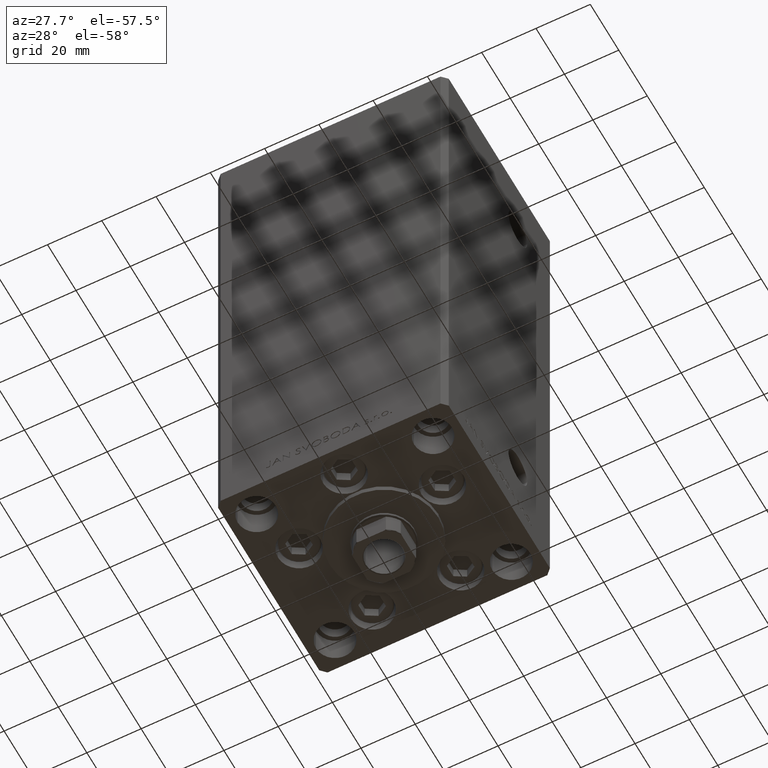
[diagram: clean part render]
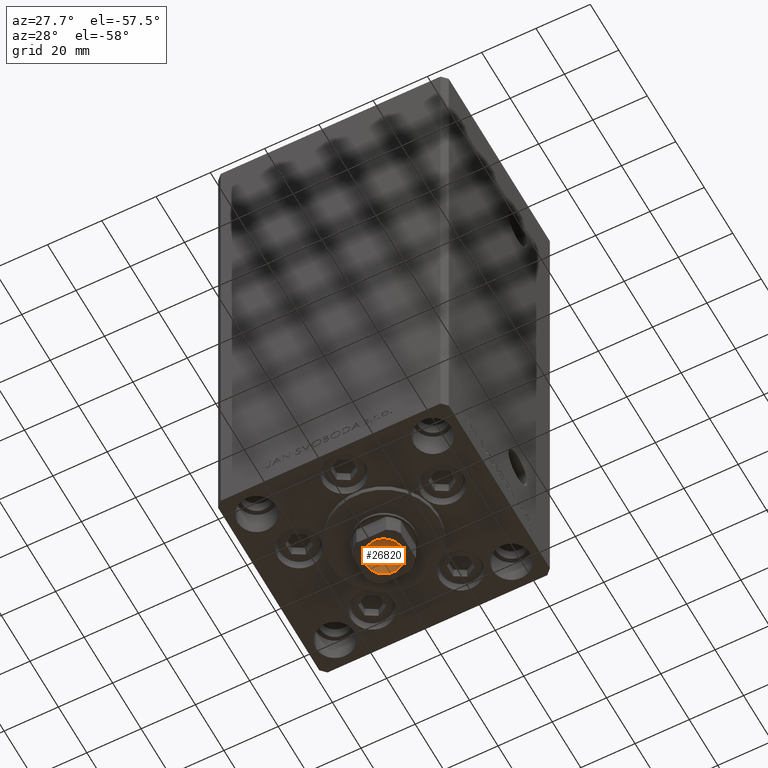
[diagram: same view with one face highlighted and labeled with its STEP entity id]
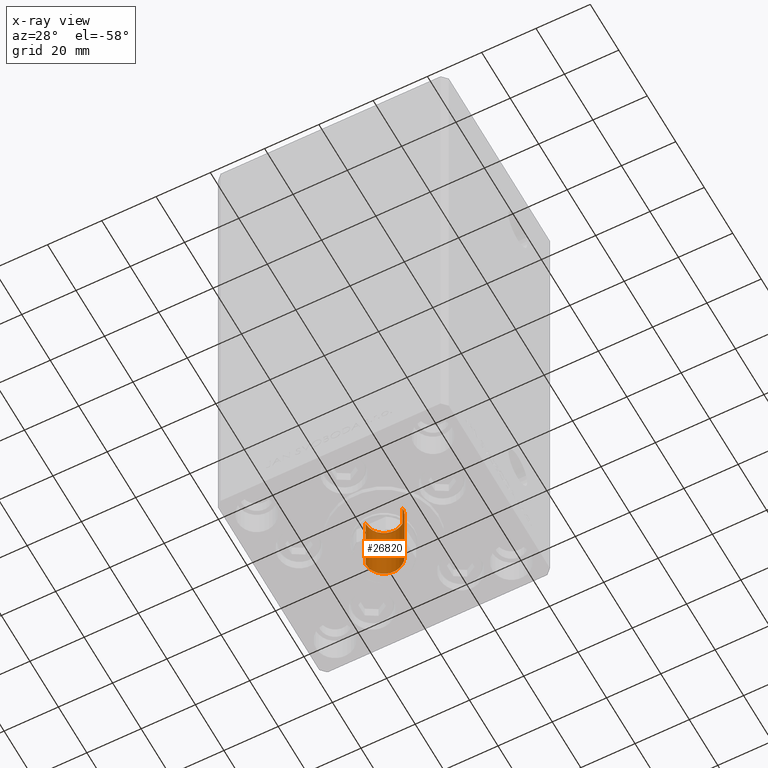
[diagram: x-ray of the same camera — body ghosted, the highlighted face saturated]
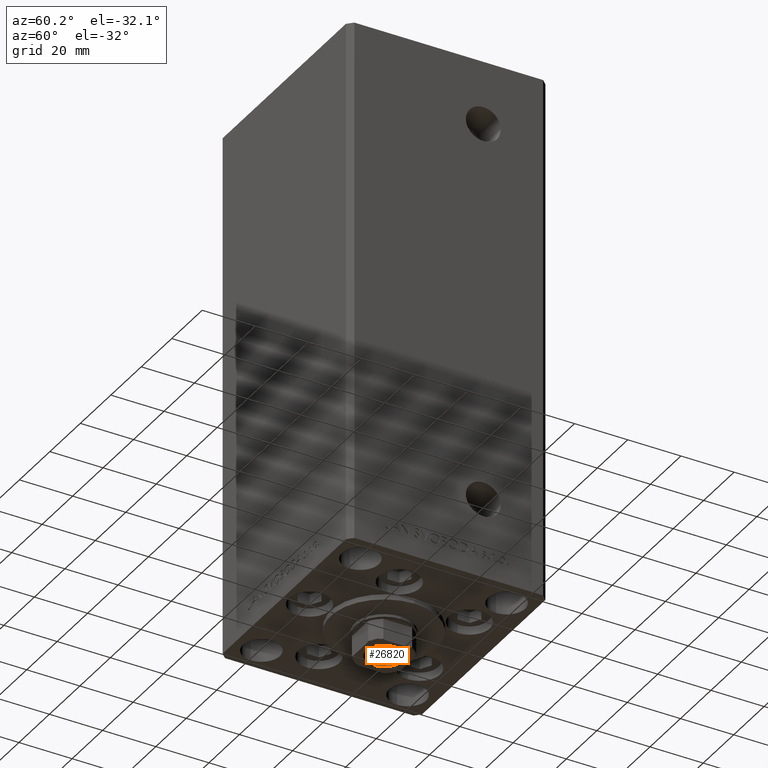
[diagram: same view with one face highlighted and labeled with its STEP entity id]
A machine part, auxiliary view. The second image highlights one B-rep face of the part: STEP entity #26820.
The next image is the same camera in x-ray: the body ghosted, the highlighted face saturated — about 2% of this face is hidden behind the body in this view.
A second angle (auxiliary view) of the same face is appended — the face is thin or edge-on in the first view.
In plain terms, the highlighted cylindrical surface (edge-blend (fillet) strip) has radius 6.75 mm, axis along (0, 0, -1).
Its self-contained STEP definition (entity closure, byte-faithful):
#571 = CARTESIAN_POINT ( 'NONE',  ( 6.749999999999995559, 0.000000000000000000, 175.4499999999999886 ) ) ;
#903 = CARTESIAN_POINT ( 'NONE',  ( -6.749999999999995559, 8.266365894244628417E-16, 175.7500000000000284 ) ) ;
#5780 = AXIS2_PLACEMENT_3D ( 'NONE', #44317, #9218, #24893 ) ;
#5838 = ORIENTED_EDGE ( 'NONE', *, *, #36773, .F. ) ;
#5961 = EDGE_CURVE ( 'NONE', #19693, #32665, #12837, .T. ) ;
#9185 = CARTESIAN_POINT ( 'NONE',  ( 0.000000000000000000, 0.000000000000000000, 150.7500000000000284 ) ) ;
#9218 = DIRECTION ( 'NONE',  ( -0.000000000000000000, -0.000000000000000000, 1.000000000000000000 ) ) ;
#12387 = VECTOR ( 'NONE', #47231, 1000.000000000000000 ) ;
#12837 = CIRCLE ( 'NONE', #23197, 6.749999999999993783 ) ;
#13557 = CARTESIAN_POINT ( 'NONE',  ( 6.749999999999995559, 0.000000000000000000, 175.7500000000000284 ) ) ;
#13627 = CARTESIAN_POINT ( 'NONE',  ( 6.749999999999993783, 0.000000000000000000, 150.7500000000000284 ) ) ;
#14871 = VERTEX_POINT ( 'NONE', #30092 ) ;
#15174 = AXIS2_PLACEMENT_3D ( 'NONE', #17918, #25385, #36858 ) ;
#16175 = VERTEX_POINT ( 'NONE', #571 ) ;
#17053 = LINE ( 'NONE', #13557, #40011 ) ;
#17196 = ORIENTED_EDGE ( 'NONE', *, *, #20438, .T. ) ;
#17904 = FACE_OUTER_BOUND ( 'NONE', #18910, .T. ) ;
#17918 = CARTESIAN_POINT ( 'NONE',  ( 0.000000000000000000, 0.000000000000000000, 175.4499999999999886 ) ) ;
#18910 = EDGE_LOOP ( 'NONE', ( #5838, #40111, #24504, #17196 ) ) ;
#19693 = VERTEX_POINT ( 'NONE', #13627 ) ;
#20438 = EDGE_CURVE ( 'NONE', #16175, #14871, #42996, .T. ) ;
#23197 = AXIS2_PLACEMENT_3D ( 'NONE', #9185, #29084, #44042 ) ;
#23579 = LINE ( 'NONE', #903, #12387 ) ;
#24504 = ORIENTED_EDGE ( 'NONE', *, *, #27451, .T. ) ;
#24893 = DIRECTION ( 'NONE',  ( 1.000000000000000000, 0.000000000000000000, 0.000000000000000000 ) ) ;
#25385 = DIRECTION ( 'NONE',  ( 0.000000000000000000, 0.000000000000000000, 1.000000000000000000 ) ) ;
#26820 = ADVANCED_FACE ( 'NONE', ( #17904 ), #43831, .F. ) ;
#27451 = EDGE_CURVE ( 'NONE', #19693, #16175, #17053, .T. ) ;
#29084 = DIRECTION ( 'NONE',  ( -0.000000000000000000, -0.000000000000000000, 1.000000000000000000 ) ) ;
#30092 = CARTESIAN_POINT ( 'NONE',  ( -6.749999999999995559, 8.266365894244628417E-16, 175.4499999999999886 ) ) ;
#32665 = VERTEX_POINT ( 'NONE', #48370 ) ;
#36773 = EDGE_CURVE ( 'NONE', #32665, #14871, #23579, .T. ) ;
#36858 = DIRECTION ( 'NONE',  ( 1.000000000000000000, 0.000000000000000000, 0.000000000000000000 ) ) ;
#40011 = VECTOR ( 'NONE', #43219, 1000.000000000000000 ) ;
#40111 = ORIENTED_EDGE ( 'NONE', *, *, #5961, .F. ) ;
#42996 = CIRCLE ( 'NONE', #15174, 6.749999999999995559 ) ;
#43219 = DIRECTION ( 'NONE',  ( -0.000000000000000000, -0.000000000000000000, 1.000000000000000000 ) ) ;
#43831 = CYLINDRICAL_SURFACE ( 'NONE', #5780, 6.749999999999995559 ) ;
#44042 = DIRECTION ( 'NONE',  ( 1.000000000000000000, 0.000000000000000000, 0.000000000000000000 ) ) ;
#44317 = CARTESIAN_POINT ( 'NONE',  ( 0.000000000000000000, 0.000000000000000000, 175.7500000000000284 ) ) ;
#47231 = DIRECTION ( 'NONE',  ( -0.000000000000000000, -0.000000000000000000, 1.000000000000000000 ) ) ;
#48370 = CARTESIAN_POINT ( 'NONE',  ( -6.749999999999993783, 8.266365894244626445E-16, 150.7500000000000284 ) ) ;